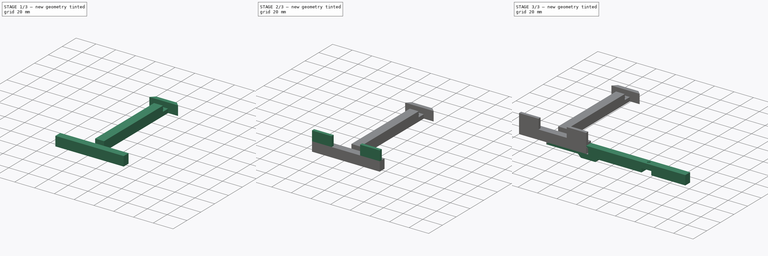
[diagram: build sequence overview — one tinted view per stage of 3, left to right]
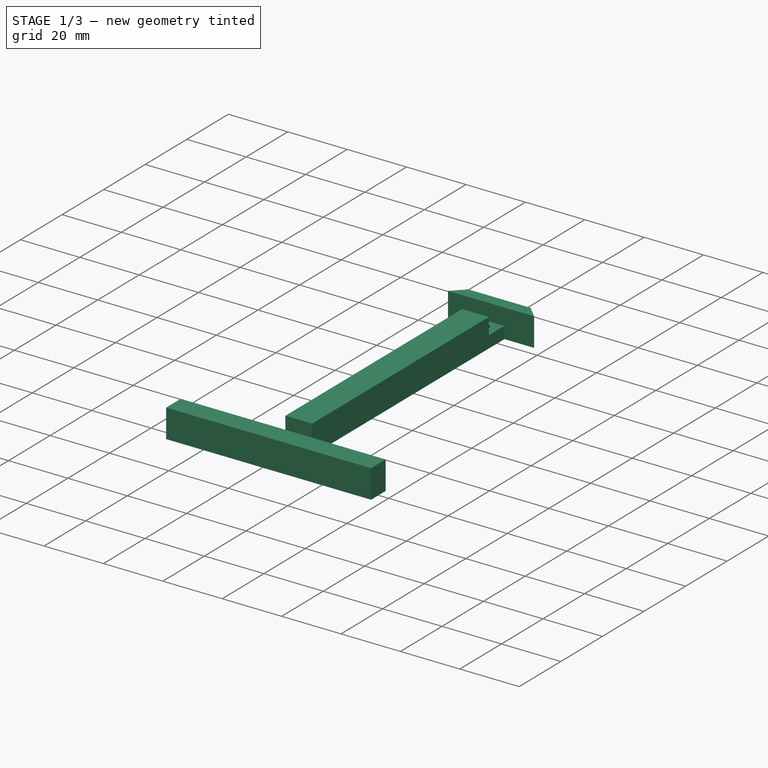
[diagram: stage 1 of 3 — iso view after this stage's code; geometry added in this stage tinted green]
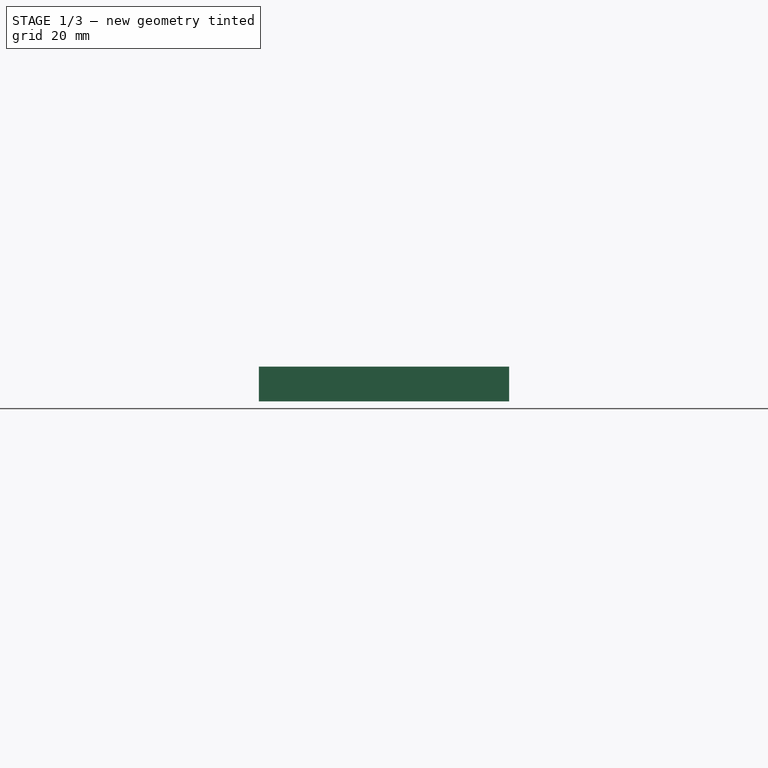
[diagram: stage 1 of 3 — front view after this stage's code; geometry added in this stage tinted green]
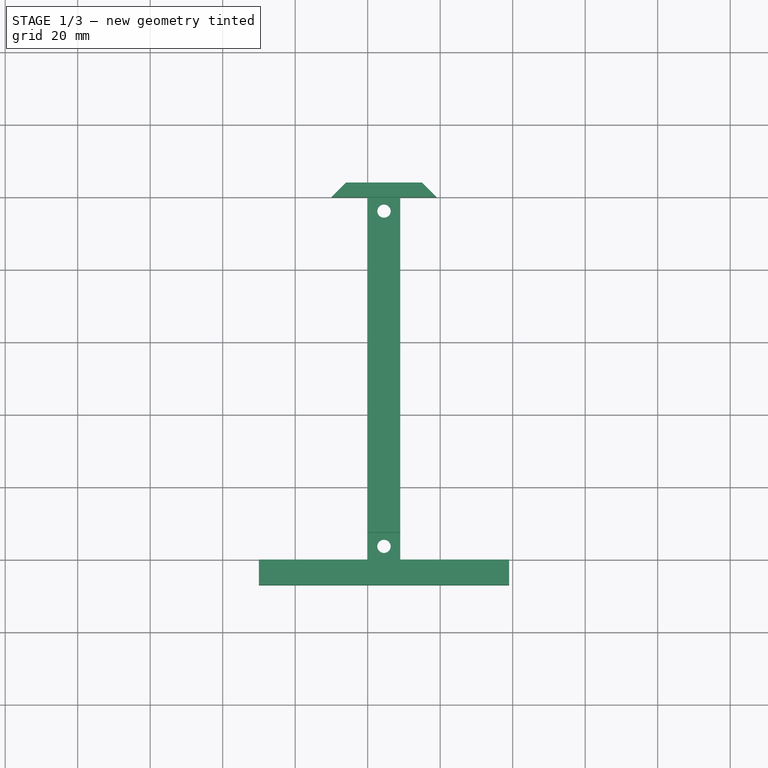
[diagram: stage 1 of 3 — top view after this stage's code; geometry added in this stage tinted green]
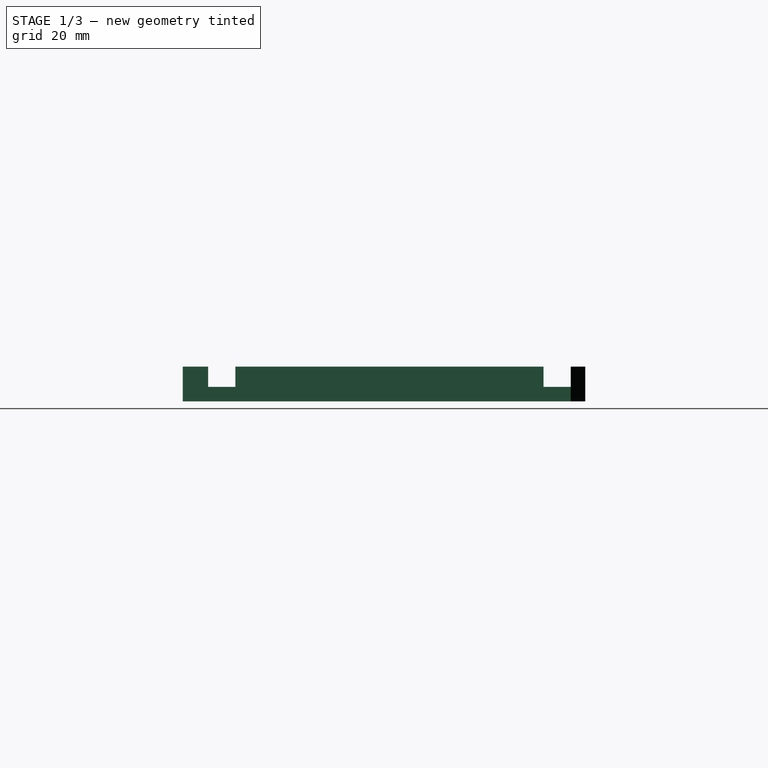
[diagram: stage 1 of 3 — right view after this stage's code; geometry added in this stage tinted green]
FCSTD DOCUMENT  (FreeCAD 0.19R23258 (Git))
Label: Phone Holder
License: All rights reserved
LicenseURL: http://en.wikipedia.org/wiki/All_rights_reserved
objects: Sketcher::SketchObject×5, PartDesign::Pad×3, PartDesign::Pocket×2, PartDesign::Body×2
note: 17 computed .brp shape members not serialized (recipe doc carries the construction recipe); baked Part::Feature solids carry a one-line shape summary decoded from their .brp

FEATURE [PartDesign::Body] Body001
  Group = -> [Sketch001,Pad001,Sketch002,Pocket]
  Origin = -> Origin001
  Tip = -> Pocket
FEATURE [Sketcher::SketchObject] Sketch003
  MapMode = 5
  Support = -> [XY_Plane002]
  sketch-geometry (14):
    g0: LineSegment StartX=0 StartY=0 StartZ=0 EndX=0 EndY=100 EndZ=0
    g1: LineSegment StartX=9 StartY=100 StartZ=0 EndX=9 EndY=0 EndZ=0
    g2: LineSegment StartX=9 StartY=100 StartZ=0 EndX=19 EndY=100 EndZ=0
    g3: LineSegment StartX=0 StartY=100 StartZ=0 EndX=-10 EndY=100 EndZ=0
    g4: LineSegment StartX=19 StartY=100 StartZ=0 EndX=15 EndY=104 EndZ=0
    g5: LineSegment StartX=-10 StartY=100 StartZ=0 EndX=-6 EndY=104 EndZ=0
    g6: LineSegment StartX=-6 StartY=104 StartZ=0 EndX=15 EndY=104 EndZ=0
    g7: Circle CenterX=4.5 CenterY=3.75 CenterZ=0 NormalX=0 NormalY=0 NormalZ=1 AngleXU=0 Radius=1.85
    g8: LineSegment StartX=0 StartY=0 StartZ=0 EndX=-30 EndY=0 EndZ=0
    g9: LineSegment StartX=9 StartY=8e-16 StartZ=0 EndX=39 EndY=0 EndZ=0
    g10: LineSegment StartX=-30 StartY=0 StartZ=0 EndX=-30 EndY=-7 EndZ=0
    g11: LineSegment StartX=39 StartY=0 StartZ=0 EndX=39 EndY=-7 EndZ=0
    g12: LineSegment StartX=-30 StartY=-7 StartZ=0 EndX=39 EndY=-7 EndZ=0
    g13: Circle CenterX=4.5 CenterY=96.25 CenterZ=0 NormalX=0 NormalY=0 NormalZ=1 AngleXU=0 Radius=1.85
  constraints (41):
    c: Coincident(g0,g-1)
    c: PointOnObject(g0,g-2)
    c: Vertical(g1)
    c: Equal(g0,g1)
    c: DistanceY(g0,g0) = 100
    c: Coincident(g2,g1)
    c: Horizontal(g2)
    c: Coincident(g3,g0)
    c: Horizontal(g3)
    c: DistanceX(g0,g1) = 9
    c: DistanceX(g3,g3) = 10
    c: Horizontal(g0,g1)
    c: Equal(g3,g2)
    c: Coincident(g4,g2)
    c: Coincident(g5,g3)
    c: Angle(g4,g2) = 0.785398
    c: Angle(g3,g5) = 0.785398
    c: DistanceY(g2,g4) = 4
    c: Horizontal(g4,g5)
    c: Coincident(g6,g5)
    c: Coincident(g6,g4)
    c: DistanceY(g0,g7) = 3.75
    c: DistanceX(g0,g7) = 4.5
    c: Diameter(g7) = 3.7
    c: Coincident(g8,g0)
    c: PointOnObject(g8,g-1)
    c: Coincident(g9,g1)
    c: PointOnObject(g9,g-1)
    c: Equal(g8,g9)
    c: DistanceX(g8,g8) = 30
    c: Coincident(g10,g8)
    c: Vertical(g10)
    c: Coincident(g11,g9)
    c: Vertical(g11)
    c: Coincident(g12,g10)
    c: Coincident(g12,g11)
    c: Horizontal(g12)
    c: DistanceY(g10,g10) = 7
    c: Vertical(g7,g13)
    c: Equal(g7,g13)
    c: DistanceY(g13,g0) = 3.75
FEATURE [PartDesign::Pad] Pad002
  Direction = (1,1,1)
  Length = 9.6
  Length2 = 100
  Profile = -> Sketch003
  Type = 0
FEATURE [Sketcher::SketchObject] Sketch004
  ExternalGeometry = -> [Pad002]
  MapMode = 5
  Placement = pos=(0,0,9.6) rot=(0,0,1;0rad)
  Support = -> [Pad002]
  sketch-geometry (8):
    g0: LineSegment StartX=9 StartY=0 StartZ=0 EndX=0 EndY=0 EndZ=0
    g1: LineSegment StartX=0 StartY=0 StartZ=0 EndX=0 EndY=7.5 EndZ=0
    g2: LineSegment StartX=0 StartY=7.5 StartZ=0 EndX=9 EndY=7.5 EndZ=0
    g3: LineSegment StartX=9 StartY=7.5 StartZ=0 EndX=9 EndY=0 EndZ=0
    g4: LineSegment StartX=0 StartY=100 StartZ=0 EndX=9 EndY=100 EndZ=0
    g5: LineSegment StartX=9 StartY=100 StartZ=0 EndX=9 EndY=92.5 EndZ=0
    g6: LineSegment StartX=9 StartY=92.5 StartZ=0 EndX=0 EndY=92.5 EndZ=0
    g7: LineSegment StartX=0 StartY=92.5 StartZ=0 EndX=0 EndY=100 EndZ=0
  constraints (22):
    c: Coincident(g0,g1)
    c: Coincident(g1,g2)
    c: Coincident(g2,g3)
    c: Coincident(g3,g0)
    c: Horizontal(g0)
    c: Horizontal(g2)
    c: Vertical(g1)
    c: Vertical(g3)
    c: Coincident(g0,g-6)
    c: PointOnObject(g1,g-5)
    c: DistanceY(g-3,g1) = 3.75
    c: Coincident(g4,g5)
    c: Coincident(g5,g6)
    c: Coincident(g6,g7)
    c: Coincident(g7,g4)
    c: Horizontal(g4)
    c: Horizontal(g6)
    c: Vertical(g5)
    c: Vertical(g7)
    c: Coincident(g4,g-5)
    c: PointOnObject(g5,g-6)
    c: DistanceY(g5,g-4) = 3.75
FEATURE [PartDesign::Pocket] Pocket001
  BaseFeature = -> Pad002
  Length = 5.6
  Length2 = 100
  Profile = -> Sketch004
  Type = 0
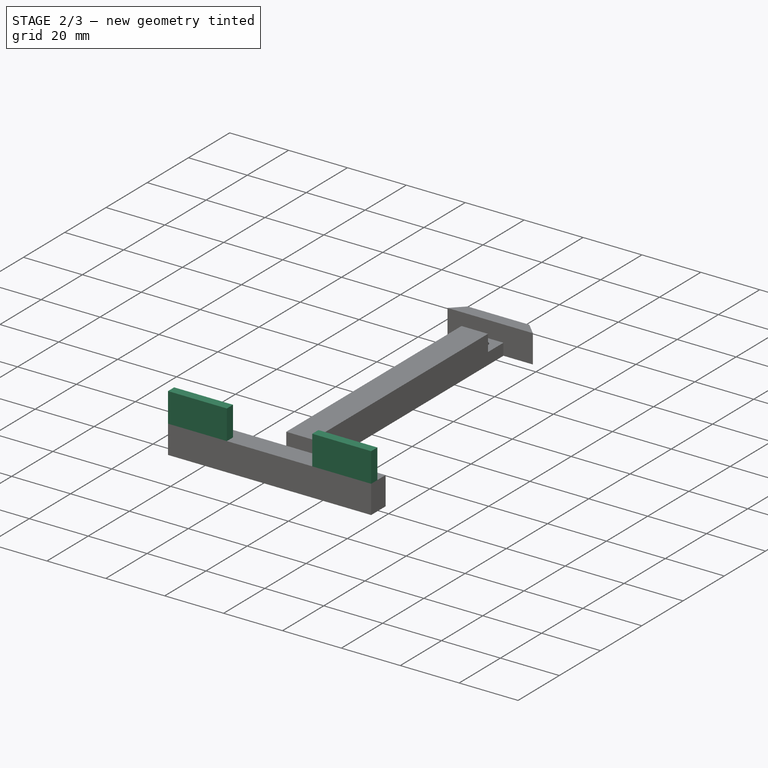
[diagram: stage 2 of 3 — iso view after this stage's code; geometry added in this stage tinted green]
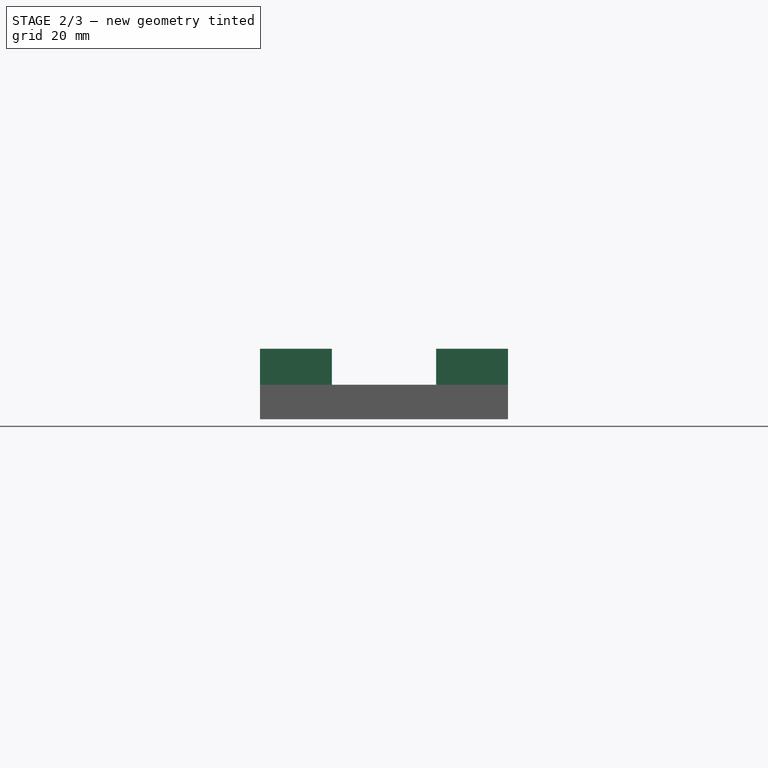
[diagram: stage 2 of 3 — front view after this stage's code; geometry added in this stage tinted green]
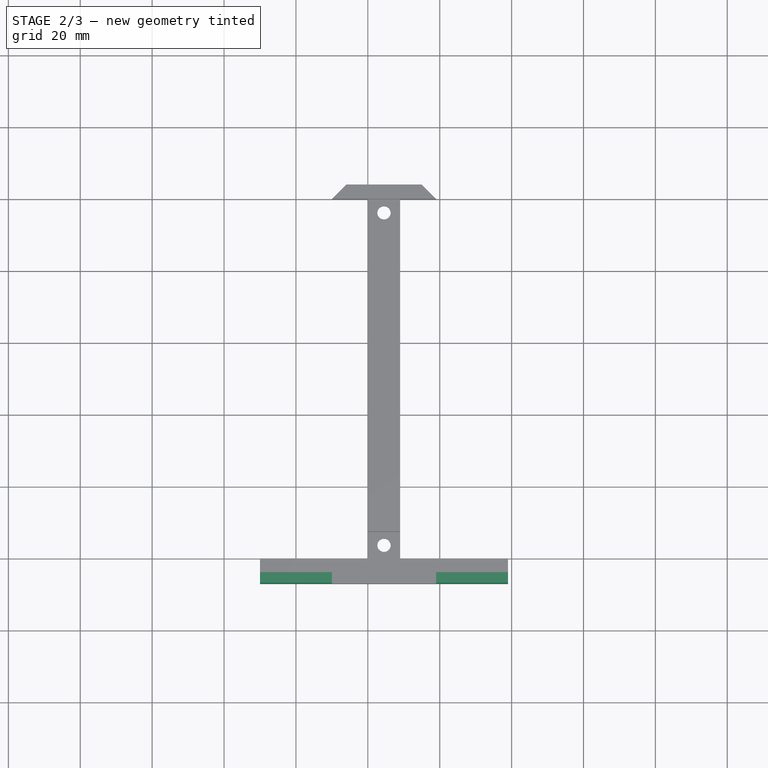
[diagram: stage 2 of 3 — top view after this stage's code; geometry added in this stage tinted green]
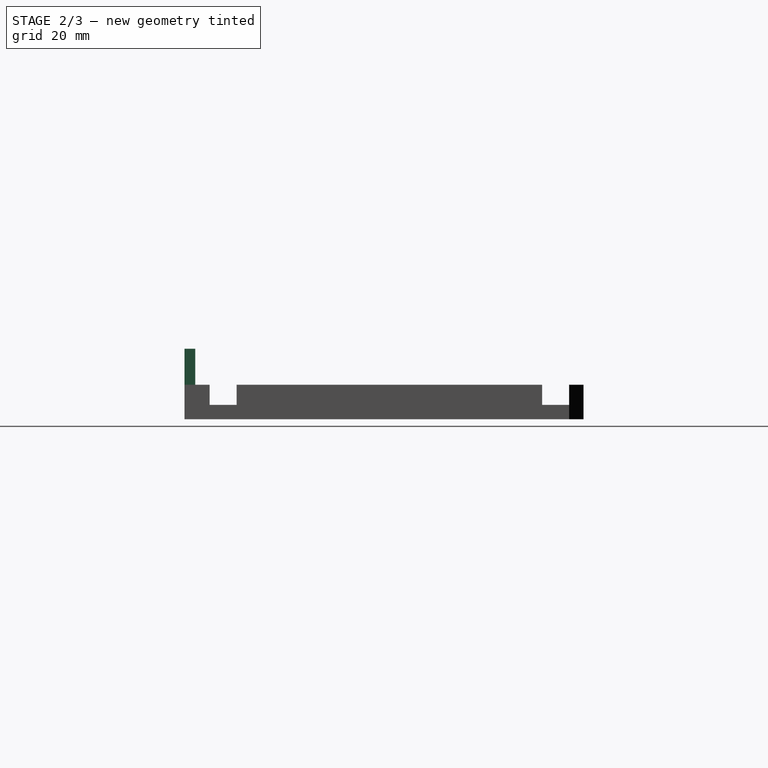
[diagram: stage 2 of 3 — right view after this stage's code; geometry added in this stage tinted green]
FEATURE [Sketcher::SketchObject] Sketch005
  ExternalGeometry = -> [Pocket001]
  MapMode = 5
  Placement = pos=(0,0,9.6) rot=(0,0,1;0rad)
  Support = -> [Pocket001]
  sketch-geometry (8):
    g0: LineSegment StartX=-30 StartY=-7 StartZ=0 EndX=-10 EndY=-7 EndZ=0
    g1: LineSegment StartX=-10 StartY=-7 StartZ=0 EndX=-10 EndY=-4 EndZ=0
    g2: LineSegment StartX=-10 StartY=-4 StartZ=0 EndX=-30 EndY=-4 EndZ=0
    g3: LineSegment StartX=-30 StartY=-4 StartZ=0 EndX=-30 EndY=-7 EndZ=0
    g4: LineSegment StartX=39 StartY=-7 StartZ=0 EndX=19 EndY=-7 EndZ=0
    g5: LineSegment StartX=19 StartY=-7 StartZ=0 EndX=19 EndY=-4 EndZ=0
    g6: LineSegment StartX=19 StartY=-4 StartZ=0 EndX=39 EndY=-4 EndZ=0
    g7: LineSegment StartX=39 StartY=-4 StartZ=0 EndX=39 EndY=-7 EndZ=0
  constraints (22):
    c: Coincident(g0,g1)
    c: Coincident(g1,g2)
    c: Coincident(g2,g3)
    c: Coincident(g3,g0)
    c: Horizontal(g0)
    c: Horizontal(g2)
    c: Vertical(g1)
    c: Vertical(g3)
    c: Coincident(g0,g-3)
    c: Coincident(g4,g5)
    c: Coincident(g5,g6)
    c: Coincident(g6,g7)
    c: Coincident(g7,g4)
    c: Horizontal(g4)
    c: Horizontal(g6)
    c: Vertical(g5)
    c: Vertical(g7)
    c: Coincident(g4,g-3)
    c: Equal(g3,g5)
    c: Equal(g2,g6)
    c: DistanceY(g3,g3) = 3
    c: DistanceX(g2,g2) = 20
FEATURE [PartDesign::Pad] Pad003
  BaseFeature = -> Pocket001
  Direction = (1,1,1)
  Length = 10
  Length2 = 100
  Profile = -> Sketch005
  Type = 0
FEATURE [PartDesign::Body] Body002
  Group = -> [Sketch003,Pad002,Sketch004,Pocket001,Sketch005,Pad003]
  Origin = -> Origin002
  Placement = pos=(96,-6,-28) rot=(0,0,1;0rad)
  Tip = -> Pad003
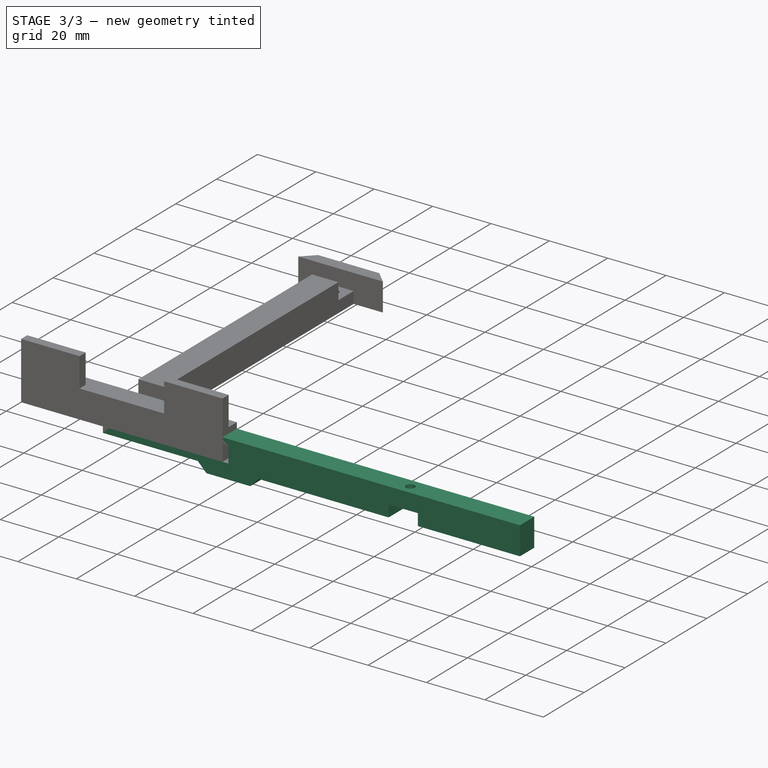
[diagram: stage 3 of 3 — iso view after this stage's code; geometry added in this stage tinted green]
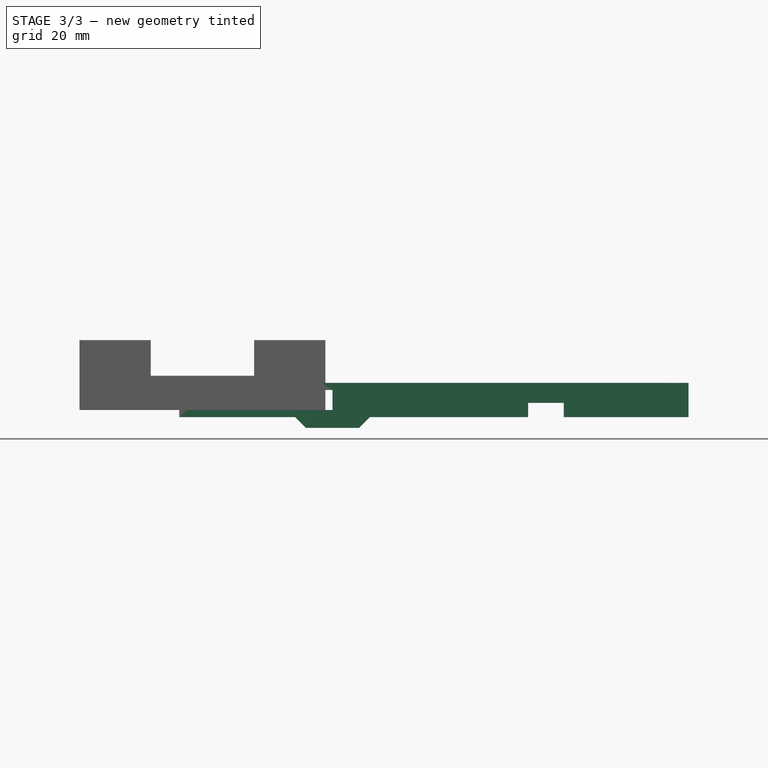
[diagram: stage 3 of 3 — front view after this stage's code; geometry added in this stage tinted green]
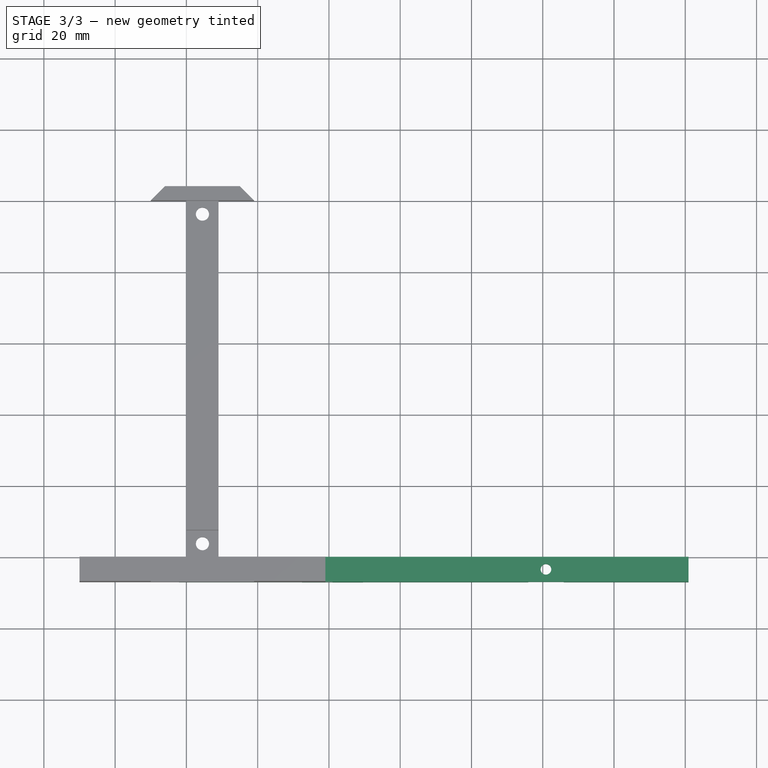
[diagram: stage 3 of 3 — top view after this stage's code; geometry added in this stage tinted green]
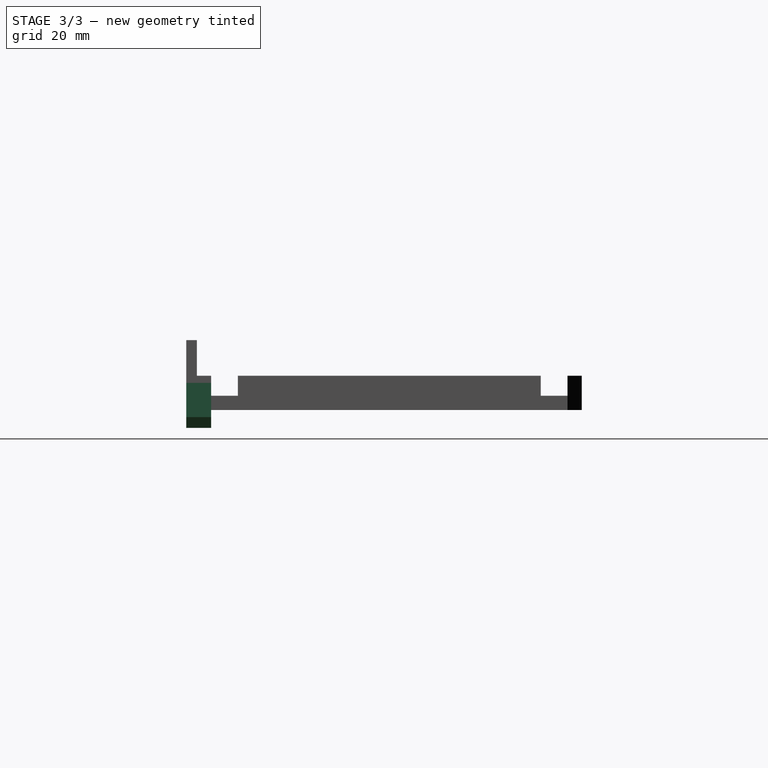
[diagram: stage 3 of 3 — right view after this stage's code; geometry added in this stage tinted green]
FEATURE [Sketcher::SketchObject] Sketch001
  MapMode = 5
  Placement = pos=(0,0,0) rot=(1,0,0;1.5708rad)
  Support = -> [XZ_Plane001]
  sketch-geometry (21):
    g0: LineSegment StartX=0 StartY=0 StartZ=0 EndX=41 EndY=0 EndZ=0
    g1: LineSegment StartX=41 StartY=0 StartZ=0 EndX=41 EndY=5.6 EndZ=0
    g2: LineSegment StartX=41 StartY=5.6 StartZ=0 EndX=38.1 EndY=5.6 EndZ=0
    g3: LineSegment StartX=38.1 StartY=5.6 StartZ=0 EndX=38.1 EndY=7.6 EndZ=0
    g4: LineSegment StartX=38.1 StartY=7.6 StartZ=0 EndX=140.9 EndY=7.6 EndZ=0
    g5: LineSegment StartX=140.9 StartY=7.6 StartZ=0 EndX=140.9 EndY=-2 EndZ=0
    g6: LineSegment StartX=0 StartY=0 StartZ=0 EndX=0 EndY=5.6 EndZ=0
    g7: LineSegment StartX=0 StartY=5.6 StartZ=0 EndX=2.8 EndY=5.6 EndZ=0
    g8: LineSegment StartX=-2 StartY=7.6 StartZ=0 EndX=-2 EndY=-2 EndZ=0
    g9: LineSegment StartX=-2 StartY=-2 StartZ=0 EndX=30.5 EndY=-2 EndZ=0
    g10: LineSegment StartX=30.5 StartY=-2 StartZ=0 EndX=33.5 EndY=-5 EndZ=0
    g11: LineSegment StartX=33.5 StartY=-5 StartZ=0 EndX=48.5 EndY=-5 EndZ=0
    g12: LineSegment StartX=48.5 StartY=-5 StartZ=0 EndX=51.5 EndY=-2 EndZ=0
    g13: GeomPoint X=41 Y=-5 Z=0
    g14: LineSegment StartX=140.9 StartY=-2 StartZ=0 EndX=105.9 EndY=-2 EndZ=0
    g15: LineSegment StartX=105.9 StartY=-2 StartZ=0 EndX=105.9 EndY=2 EndZ=0
    g16: LineSegment StartX=105.9 StartY=2 StartZ=0 EndX=95.9 EndY=2 EndZ=0
    g17: LineSegment StartX=95.9 StartY=2 StartZ=0 EndX=95.9 EndY=-2 EndZ=0
    g18: LineSegment StartX=95.9 StartY=-2 StartZ=0 EndX=51.5 EndY=-2 EndZ=0
    g19: LineSegment StartX=-2 StartY=7.6 StartZ=0 EndX=0.8 EndY=7.6 EndZ=0
    g20: LineSegment StartX=0.8 StartY=7.6 StartZ=0 EndX=2.8 EndY=5.6 EndZ=0
  constraints (61):
    c: Coincident(g0,g-1)
    c: PointOnObject(g0,g-1)
    c: DistanceX(g0,g0) = 41
    c: Coincident(g1,g0)
    c: Vertical(g1)
    c: DistanceY(g1,g1) = 5.6
    c: Coincident(g2,g1)
    c: Horizontal(g2)
    c: DistanceX(g2,g2) = 2.9
    c: Coincident(g3,g2)
    c: Vertical(g3)
    c: DistanceY(g3,g3) = 2
    c: Coincident(g4,g3)
    c: Horizontal(g4)
    c: DistanceX(g4,g4) = 102.8
    c: Coincident(g5,g4)
    c: Vertical(g5)
    c: Coincident(g6,g0)
    c: PointOnObject(g6,g-2)
    c: Equal(g1,g6)
    c: Coincident(g7,g6)
    c: Horizontal(g7)
    c: Vertical(g8)
    c: DistanceY(g8,g0) = 2
    c: Coincident(g9,g8)
    c: Horizontal(g9)
    c: Coincident(g10,g9)
    c: Coincident(g11,g10)
    c: Horizontal(g11)
    c: Coincident(g12,g11)
    c: Angle(g9,g10) = 2.35619
    c: PointOnObject(g13,g11)
    c: Vertical(g13,g0)
    c: DistanceX(g10,g0) = 7.5
    c: DistanceX(g0,g11) = 7.5
    c: DistanceY(g10,g9) = 3
    c: Coincident(g14,g5)
    c: Horizontal(g14)
    c: DistanceX(g14,g14) = 35
    c: Coincident(g15,g14)
    c: Vertical(g15)
    c: Coincident(g16,g15)
    c: Horizontal(g16)
    c: Coincident(g17,g16)
    c: Vertical(g17)
    c: Coincident(g18,g17)
    c: Coincident(g18,g12)
    c: Horizontal(g18)
    c: Angle(g12,g18) = 2.35619
    c: DistanceY(g17,g17) = 4
    c: Horizontal(g5,g12)
    c: Horizontal(g9,g12)
    c: DistanceX(g16,g16) = 10
    c: DistanceX(g7,g7) = 2.8
    c: Horizontal(g3,g8)
    c: DistanceX(g8,g0) = 2
    c: Coincident(g19,g8)
    c: Horizontal(g19)
    c: Coincident(g20,g19)
    c: Coincident(g20,g7)
    c: Angle(g20,g7) = 0.785398
FEATURE [PartDesign::Pad] Pad001
  Direction = (1,1,1)
  Length = 7
  Length2 = 100
  Placement = pos=(0,0,0) rot=(1,0,0;1.5708rad)
  Profile = -> Sketch001
  Type = 0
FEATURE [Sketcher::SketchObject] Sketch002
  ExternalGeometry = -> [Pad001]
  MapMode = 5
  Placement = pos=(0,1.3e-15,2) rot=(1,0,0;3.14159rad)
  Support = -> [Pad001]
  sketch-geometry (2):
    g0: Circle CenterX=100.9 CenterY=3.5 CenterZ=0 NormalX=0 NormalY=0 NormalZ=1 AngleXU=0 Radius=1.5
    g1: LineSegment [constr] StartX=95.9 StartY=7 StartZ=0 EndX=105.9 EndY=9e-16 EndZ=0
  constraints (4):
    c: Coincident(g1,g-3)
    c: Coincident(g1,g-4)
    c: Symmetric(g1,g1,g0)
    c: Diameter(g0) = 3
FEATURE [PartDesign::Pocket] Pocket
  BaseFeature = -> Pad001
  Length = 5
  Length2 = 100
  Placement = pos=(0,0,0) rot=(1,0,0;1.5708rad)
  Profile = -> Sketch002
  Type = 1
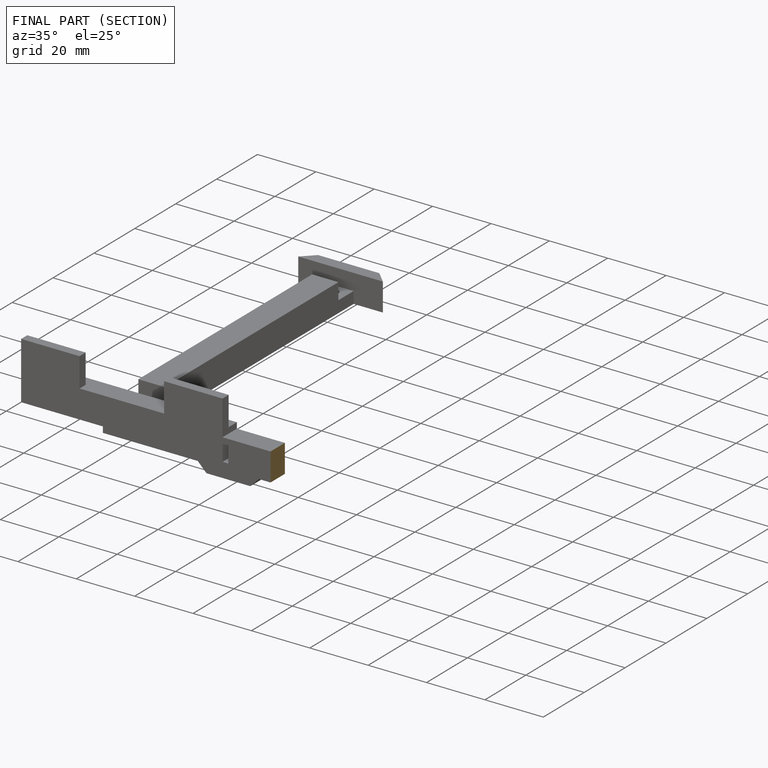
[diagram: finished part — half-section view (interior)]
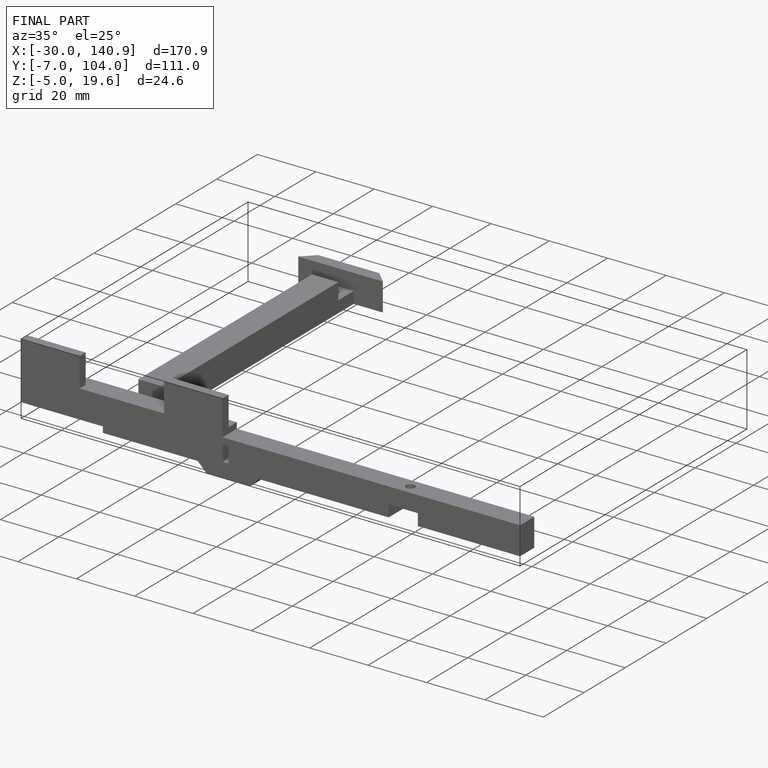
[diagram: finished part — iso view with bounding-box wireframe]
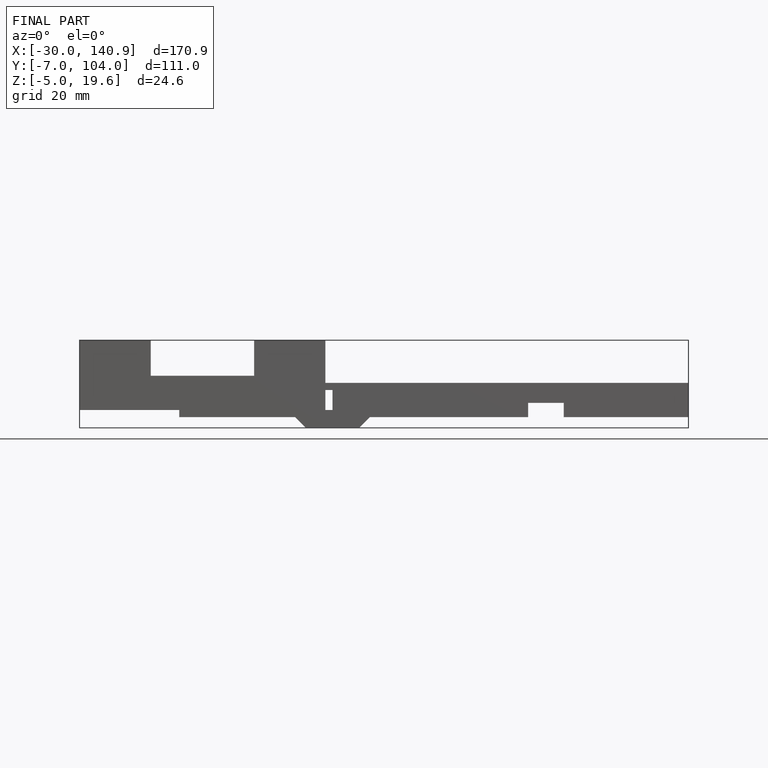
[diagram: finished part — front view with bounding-box wireframe]
